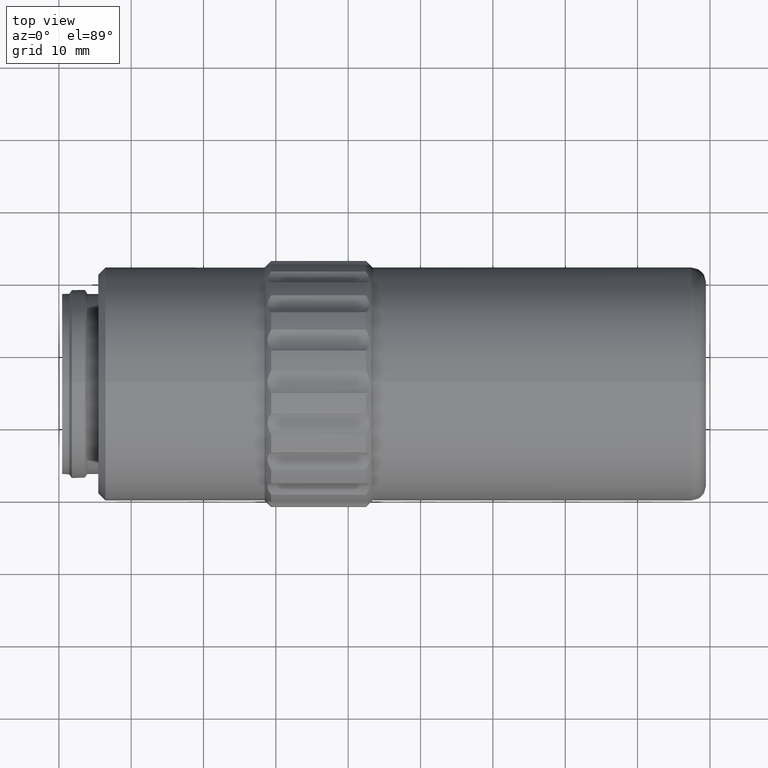
[diagram: clean part render]
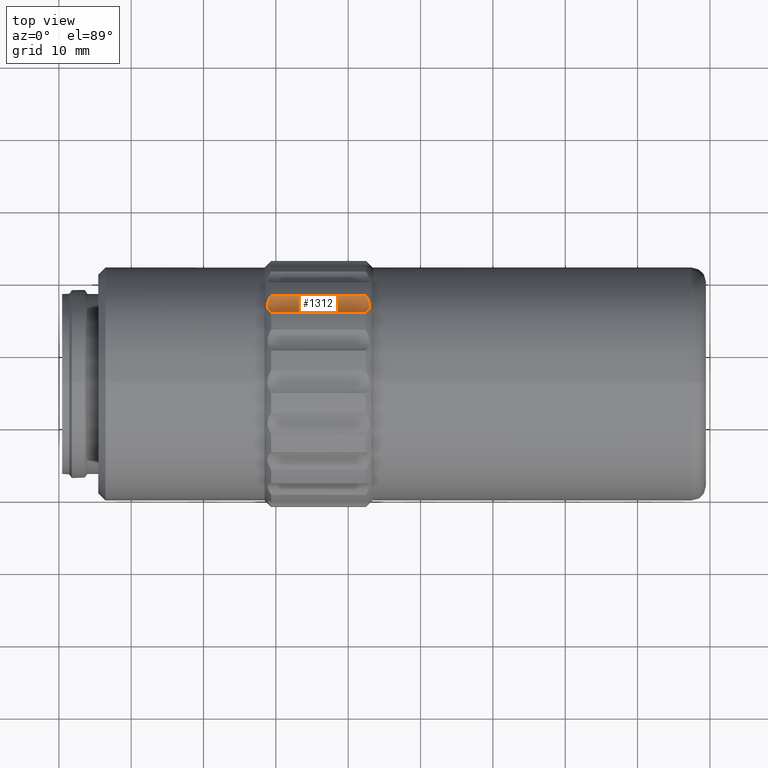
[diagram: same view with one face highlighted and labeled with its STEP entity id]
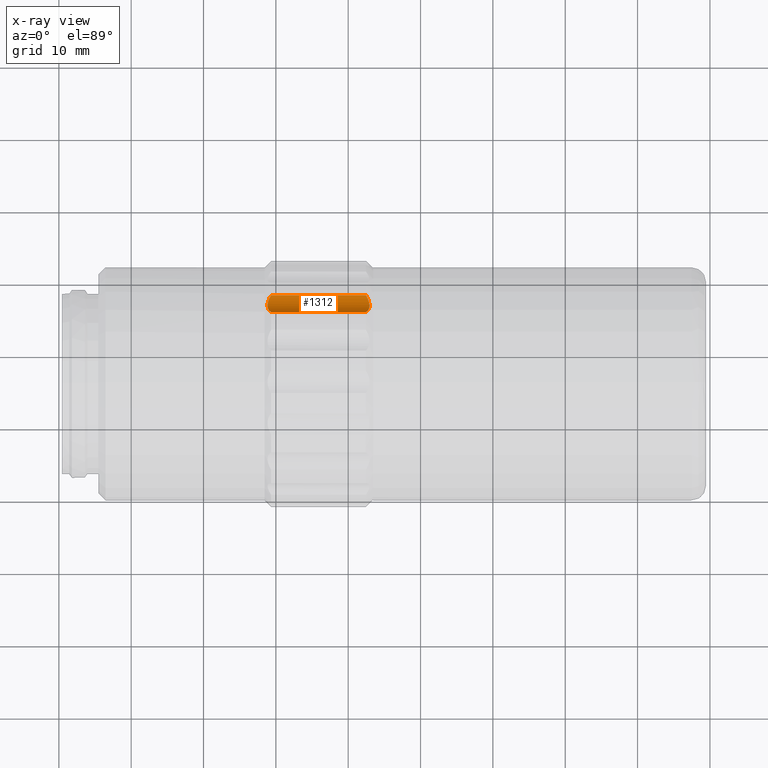
[diagram: x-ray of the same camera — body ghosted, the highlighted face saturated]
A machine part, top view. The second image highlights one B-rep face of the part: STEP entity #1312.
The next image is the same camera in x-ray: the body ghosted, the highlighted face saturated — about 0% of this face is hidden behind the body in this view.
In plain terms, the highlighted cylindrical surface (edge-blend (fillet) strip) has radius 3 mm, axis along (-1, 0, 0).
Its self-contained STEP definition (entity closure, byte-faithful):
#22 = ORIENTED_EDGE ( 'NONE', *, *, #1799, .F. ) ;
#50 = CARTESIAN_POINT ( 'NONE',  ( 32.59371544402080190, 57.84262694411020078, 12.01319058448289923 ) ) ;
#109 = CARTESIAN_POINT ( 'NONE',  ( 18.84671480941283761, 56.73493106221783933, 12.54897458209228844 ) ) ;
#113 = CARTESIAN_POINT ( 'NONE',  ( 25.94685803487879738, 55.71814035268529608, 13.96297718956138922 ) ) ;
#227 = DIRECTION ( 'NONE',  ( 0.000000000000000000, 0.000000000000000000, 1.000000000000000000 ) ) ;
#261 = CARTESIAN_POINT ( 'NONE',  ( 32.44685803487878673, 55.71814035268528187, 13.96297718956140166 ) ) ;
#264 = CARTESIAN_POINT ( 'NONE',  ( 18.85967090375867983, 56.41121047876222860, 12.83490613950239023 ) ) ;
#284 = CARTESIAN_POINT ( 'NONE',  ( 19.34685803487880307, 58.08791284195768867, 11.97450196783888821 ) ) ;
#295 = EDGE_LOOP ( 'NONE', ( #357, #22, #1675, #1879 ) ) ;
#326 = EDGE_CURVE ( 'NONE', #1518, #2062, #520, .T. ) ;
#357 = ORIENTED_EDGE ( 'NONE', *, *, #615, .F. ) ;
#520 = B_SPLINE_CURVE_WITH_KNOTS ( 'NONE', 3,
 ( #2069, #1435, #1258, #1916, #1752, #264, #627, #109, #1426, #1083, #1247, #2090, #1740, #284 ),
 .UNSPECIFIED., .F., .F.,
 ( 4, 2, 2, 2, 2, 2, 4 ),
 ( 3.469446951953614189E-18, 0.0008570537395405549699, 0.001285580609310832184, 0.001714107479081109506, 0.002142634348851387045, 0.002571161218621663934, 0.003428214958162216410 ),
 .UNSPECIFIED. ) ;
#549 = CARTESIAN_POINT ( 'NONE',  ( 32.44685803487877962, 58.08791284195770288, 11.97450196783888643 ) ) ;
#556 = CARTESIAN_POINT ( 'NONE',  ( 19.34685803487880307, 58.08791284195768867, 11.97450196783888821 ) ) ;
#599 = VERTEX_POINT ( 'NONE', #549 ) ;
#615 = EDGE_CURVE ( 'NONE', #599, #681, #969, .T. ) ;
#623 = CARTESIAN_POINT ( 'NONE',  ( 32.94700126034476284, 56.51882825756361228, 12.73030636577400720 ) ) ;
#627 = CARTESIAN_POINT ( 'NONE',  ( 18.84700383090775233, 56.51507179325524532, 12.73377765964754893 ) ) ;
#681 = VERTEX_POINT ( 'NONE', #261 ) ;
#696 = CARTESIAN_POINT ( 'NONE',  ( 32.71832649179925312, 57.59256539127557062, 12.08340433005123948 ) ) ;
#738 = DIRECTION ( 'NONE',  ( 1.000000000000000000, -0.000000000000000000, -0.000000000000000000 ) ) ;
#750 = CARTESIAN_POINT ( 'NONE',  ( 32.88806413580808652, 56.22807377565807485, 13.03947610223928599 ) ) ;
#776 = CARTESIAN_POINT ( 'NONE',  ( 32.85273454226020817, 56.14142688927830704, 13.15133936029216954 ) ) ;
#858 = CARTESIAN_POINT ( 'NONE',  ( 32.88671825240743374, 57.09498206104940010, 12.31354536760548690 ) ) ;
#885 = CARTESIAN_POINT ( 'NONE',  ( 32.44685803487877962, 58.08791284195770288, 11.97450196783888643 ) ) ;
#901 = LINE ( 'NONE', #1209, #1715 ) ;
#920 = EDGE_CURVE ( 'NONE', #681, #1518, #1564, .T. ) ;
#969 = B_SPLINE_CURVE_WITH_KNOTS ( 'NONE', 3,
 ( #885, #50, #696, #1185, #858, #1513, #1577, #623, #1232, #750, #776, #1404, #1431, #1080 ),
 .UNSPECIFIED., .F., .F.,
 ( 4, 2, 2, 2, 2, 2, 4 ),
 ( 2.255140518769849223E-17, 0.0008570537395405681972, 0.001285580609310841074, 0.001714107479081113843, 0.002142634348851386612, 0.002571161218621659597, 0.003428214958162220313 ),
 .UNSPECIFIED. ) ;
#1017 = DIRECTION ( 'NONE',  ( -1.000000000000000000, 0.000000000000000000, 0.000000000000000000 ) ) ;
#1080 = CARTESIAN_POINT ( 'NONE',  ( 32.44685803487878673, 55.71814035268528187, 13.96297718956140166 ) ) ;
#1083 = CARTESIAN_POINT ( 'NONE',  ( 18.90565193394951393, 57.08989280161695490, 12.31632407541565755 ) ) ;
#1162 = CARTESIAN_POINT ( 'NONE',  ( 53.58686043487880823, 58.55532038888750179, 14.93786664082010063 ) ) ;
#1185 = CARTESIAN_POINT ( 'NONE',  ( 32.85210940846933170, 57.21721963540510814, 12.24933554730703378 ) ) ;
#1192 = DIRECTION ( 'NONE',  ( -1.000000000000000000, 0.000000000000000000, 0.000000000000000000 ) ) ;
#1209 = CARTESIAN_POINT ( 'NONE',  ( 53.58686043487880823, 58.08791284195770288, 11.97450196783888643 ) ) ;
#1232 = CARTESIAN_POINT ( 'NONE',  ( 32.93501117040978698, 56.41679785712319273, 12.82915025000380460 ) ) ;
#1247 = CARTESIAN_POINT ( 'NONE',  ( 18.94098152749739228, 57.21510267934501570, 12.25041840084324996 ) ) ;
#1258 = CARTESIAN_POINT ( 'NONE',  ( 19.07538957795832246, 55.91140442543625255, 13.49406587643664501 ) ) ;
#1261 = CARTESIAN_POINT ( 'NONE',  ( 19.34685803487878886, 55.71814035268528187, 13.96297718956139278 ) ) ;
#1312 = ADVANCED_FACE ( 'NONE', ( #1797 ), #1497, .F. ) ;
#1404 = CARTESIAN_POINT ( 'NONE',  ( 32.71993598786259128, 55.91343442325894841, 13.49056406336132952 ) ) ;
#1426 = CARTESIAN_POINT ( 'NONE',  ( 18.85870489934780991, 56.84999067884827895, 12.46565831306566352 ) ) ;
#1431 = CARTESIAN_POINT ( 'NONE',  ( 32.59397570363891816, 55.79897765731979575, 13.72771975950780821 ) ) ;
#1435 = CARTESIAN_POINT ( 'NONE',  ( 19.20000062573676658, 55.79883465147822363, 13.72813594343331900 ) ) ;
#1497 = CYLINDRICAL_SURFACE ( 'NONE', #1991, 3.000000000000000888 ) ;
#1501 = VECTOR ( 'NONE', #1017, 1000.000000000000000 ) ;
#1513 = CARTESIAN_POINT ( 'NONE',  ( 32.93404516599890286, 56.85662936152226621, 12.46115531925905273 ) ) ;
#1518 = VERTEX_POINT ( 'NONE', #1261 ) ;
#1564 = LINE ( 'NONE', #113, #1501 ) ;
#1577 = CARTESIAN_POINT ( 'NONE',  ( 32.94671223884983391, 56.73900192251907981, 12.54587797077277322 ) ) ;
#1675 = ORIENTED_EDGE ( 'NONE', *, *, #326, .F. ) ;
#1715 = VECTOR ( 'NONE', #738, 1000.000000000000000 ) ;
#1740 = CARTESIAN_POINT ( 'NONE',  ( 19.19974036611871071, 57.84219225024989441, 12.01325914816416329 ) ) ;
#1752 = CARTESIAN_POINT ( 'NONE',  ( 18.90699781735015605, 56.22445354203718182, 13.04400552683793713 ) ) ;
#1797 = FACE_OUTER_BOUND ( 'NONE', #295, .T. ) ;
#1799 = EDGE_CURVE ( 'NONE', #2062, #599, #901, .T. ) ;
#1879 = ORIENTED_EDGE ( 'NONE', *, *, #920, .F. ) ;
#1916 = CARTESIAN_POINT ( 'NONE',  ( 18.94160666128824744, 56.13999288115843456, 13.15323611948972449 ) ) ;
#1991 = AXIS2_PLACEMENT_3D ( 'NONE', #1162, #1192, #227 ) ;
#2062 = VERTEX_POINT ( 'NONE', #556 ) ;
#2069 = CARTESIAN_POINT ( 'NONE',  ( 19.34685803487878886, 55.71814035268528187, 13.96297718956139278 ) ) ;
#2090 = CARTESIAN_POINT ( 'NONE',  ( 19.07378008189503760, 57.58876427318685387, 12.08479540418656484 ) ) ;